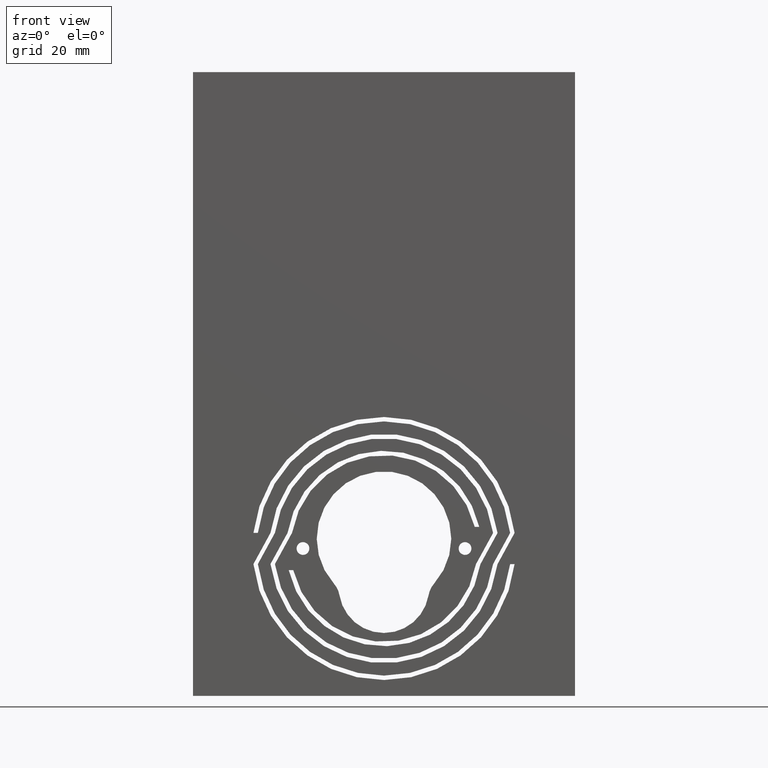
[diagram: clean part render]
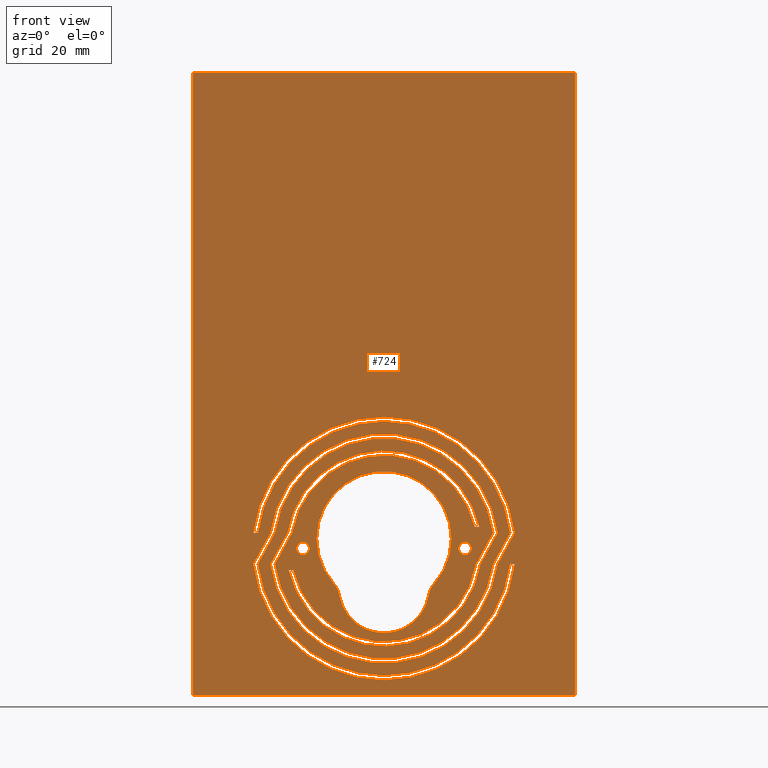
[diagram: same view with one face highlighted and labeled with its STEP entity id]
A machine part, front view. The second image highlights one B-rep face of the part: STEP entity #724.
In plain terms, the highlighted planar face has unit normal (0, 1, 0).
Its self-contained STEP definition (entity closure, byte-faithful):
#24=FACE_BOUND('',#124,.T.);
#25=FACE_BOUND('',#125,.T.);
#26=FACE_BOUND('',#126,.T.);
#27=FACE_BOUND('',#127,.T.);
#28=FACE_BOUND('',#128,.T.);
#46=PLANE('',#811);
#82=FACE_OUTER_BOUND('',#123,.T.);
#123=EDGE_LOOP('',(#637,#638,#639,#640));
#124=EDGE_LOOP('',(#641));
#125=EDGE_LOOP('',(#642));
#126=EDGE_LOOP('',(#643,#644,#645,#646));
#127=EDGE_LOOP('',(#647,#648,#649,#650,#651,#652,#653,#654,#655,#656,#657,
#658));
#128=EDGE_LOOP('',(#659,#660,#661,#662,#663,#664,#665,#666,#667,#668,#669,
#670));
#137=LINE('',#1078,#203);
#141=LINE('',#1090,#207);
#145=LINE('',#1102,#211);
#149=LINE('',#1114,#215);
#153=LINE('',#1126,#219);
#157=LINE('',#1137,#223);
#159=LINE('',#1142,#225);
#164=LINE('',#1156,#230);
#168=LINE('',#1168,#234);
#172=LINE('',#1180,#238);
#176=LINE('',#1192,#242);
#180=LINE('',#1204,#246);
#185=LINE('',#1218,#251);
#188=LINE('',#1224,#254);
#191=LINE('',#1230,#257);
#194=LINE('',#1234,#260);
#203=VECTOR('',#869,10.);
#207=VECTOR('',#881,10.);
#211=VECTOR('',#893,10.);
#215=VECTOR('',#905,10.);
#219=VECTOR('',#917,10.);
#223=VECTOR('',#929,10.);
#225=VECTOR('',#933,10.);
#230=VECTOR('',#946,10.);
#234=VECTOR('',#958,10.);
#238=VECTOR('',#970,10.);
#242=VECTOR('',#982,10.);
#246=VECTOR('',#994,10.);
#251=VECTOR('',#1007,10.);
#254=VECTOR('',#1012,10.);
#257=VECTOR('',#1017,10.);
#260=VECTOR('',#1022,10.);
#262=CIRCLE('',#742,1.3);
#264=CIRCLE('',#745,1.3);
#265=CIRCLE('',#747,4.8);
#267=CIRCLE('',#750,13.7);
#269=CIRCLE('',#753,4.8);
#271=CIRCLE('',#756,9.20000000000001);
#273=CIRCLE('',#759,19.9);
#275=CIRCLE('',#763,19.);
#277=CIRCLE('',#767,22.44);
#279=CIRCLE('',#771,25.88);
#281=CIRCLE('',#775,26.78);
#283=CIRCLE('',#779,23.34);
#285=CIRCLE('',#784,25.88);
#287=CIRCLE('',#788,26.78);
#289=CIRCLE('',#792,23.34);
#291=CIRCLE('',#796,19.9);
#293=CIRCLE('',#800,19.);
#295=CIRCLE('',#804,22.44);
#298=VERTEX_POINT('',#1034);
#300=VERTEX_POINT('',#1040);
#301=VERTEX_POINT('',#1044);
#302=VERTEX_POINT('',#1045);
#305=VERTEX_POINT('',#1053);
#307=VERTEX_POINT('',#1059);
#309=VERTEX_POINT('',#1068);
#310=VERTEX_POINT('',#1069);
#313=VERTEX_POINT('',#1077);
#315=VERTEX_POINT('',#1083);
#317=VERTEX_POINT('',#1089);
#319=VERTEX_POINT('',#1095);
#321=VERTEX_POINT('',#1101);
#323=VERTEX_POINT('',#1107);
#325=VERTEX_POINT('',#1113);
#327=VERTEX_POINT('',#1119);
#329=VERTEX_POINT('',#1125);
#331=VERTEX_POINT('',#1131);
#333=VERTEX_POINT('',#1140);
#334=VERTEX_POINT('',#1141);
#337=VERTEX_POINT('',#1149);
#339=VERTEX_POINT('',#1155);
#341=VERTEX_POINT('',#1161);
#343=VERTEX_POINT('',#1167);
#345=VERTEX_POINT('',#1173);
#347=VERTEX_POINT('',#1179);
#349=VERTEX_POINT('',#1185);
#351=VERTEX_POINT('',#1191);
#353=VERTEX_POINT('',#1197);
#355=VERTEX_POINT('',#1203);
#359=VERTEX_POINT('',#1215);
#360=VERTEX_POINT('',#1217);
#362=VERTEX_POINT('',#1223);
#364=VERTEX_POINT('',#1229);
#367=EDGE_CURVE('',#298,#298,#262,.T.);
#370=EDGE_CURVE('',#300,#300,#264,.T.);
#371=EDGE_CURVE('',#301,#302,#265,.T.);
#375=EDGE_CURVE('',#302,#305,#267,.T.);
#378=EDGE_CURVE('',#305,#307,#269,.T.);
#381=EDGE_CURVE('',#307,#301,#271,.T.);
#383=EDGE_CURVE('',#309,#310,#273,.T.);
#387=EDGE_CURVE('',#310,#313,#137,.T.);
#390=EDGE_CURVE('',#313,#315,#275,.T.);
#393=EDGE_CURVE('',#315,#317,#141,.T.);
#396=EDGE_CURVE('',#317,#319,#277,.T.);
#399=EDGE_CURVE('',#319,#321,#145,.T.);
#402=EDGE_CURVE('',#321,#323,#279,.T.);
#405=EDGE_CURVE('',#323,#325,#149,.T.);
#408=EDGE_CURVE('',#325,#327,#281,.T.);
#411=EDGE_CURVE('',#327,#329,#153,.T.);
#414=EDGE_CURVE('',#329,#331,#283,.T.);
#417=EDGE_CURVE('',#331,#309,#157,.T.);
#419=EDGE_CURVE('',#333,#334,#159,.T.);
#423=EDGE_CURVE('',#334,#337,#285,.T.);
#426=EDGE_CURVE('',#337,#339,#164,.T.);
#429=EDGE_CURVE('',#339,#341,#287,.T.);
#432=EDGE_CURVE('',#341,#343,#168,.T.);
#435=EDGE_CURVE('',#343,#345,#289,.T.);
#438=EDGE_CURVE('',#345,#347,#172,.T.);
#441=EDGE_CURVE('',#347,#349,#291,.T.);
#444=EDGE_CURVE('',#349,#351,#176,.T.);
#447=EDGE_CURVE('',#351,#353,#293,.T.);
#450=EDGE_CURVE('',#353,#355,#180,.T.);
#453=EDGE_CURVE('',#355,#333,#295,.T.);
#457=EDGE_CURVE('',#360,#359,#185,.T.);
#460=EDGE_CURVE('',#362,#360,#188,.T.);
#463=EDGE_CURVE('',#364,#362,#191,.T.);
#466=EDGE_CURVE('',#359,#364,#194,.T.);
#637=ORIENTED_EDGE('',*,*,#466,.T.);
#638=ORIENTED_EDGE('',*,*,#463,.T.);
#639=ORIENTED_EDGE('',*,*,#460,.T.);
#640=ORIENTED_EDGE('',*,*,#457,.T.);
#641=ORIENTED_EDGE('',*,*,#367,.T.);
#642=ORIENTED_EDGE('',*,*,#370,.T.);
#643=ORIENTED_EDGE('',*,*,#371,.T.);
#644=ORIENTED_EDGE('',*,*,#375,.T.);
#645=ORIENTED_EDGE('',*,*,#378,.T.);
#646=ORIENTED_EDGE('',*,*,#381,.T.);
#647=ORIENTED_EDGE('',*,*,#383,.T.);
#648=ORIENTED_EDGE('',*,*,#387,.T.);
#649=ORIENTED_EDGE('',*,*,#390,.T.);
#650=ORIENTED_EDGE('',*,*,#393,.T.);
#651=ORIENTED_EDGE('',*,*,#396,.T.);
#652=ORIENTED_EDGE('',*,*,#399,.T.);
#653=ORIENTED_EDGE('',*,*,#402,.T.);
#654=ORIENTED_EDGE('',*,*,#405,.T.);
#655=ORIENTED_EDGE('',*,*,#408,.T.);
#656=ORIENTED_EDGE('',*,*,#411,.T.);
#657=ORIENTED_EDGE('',*,*,#414,.T.);
#658=ORIENTED_EDGE('',*,*,#417,.T.);
#659=ORIENTED_EDGE('',*,*,#419,.T.);
#660=ORIENTED_EDGE('',*,*,#423,.T.);
#661=ORIENTED_EDGE('',*,*,#426,.T.);
#662=ORIENTED_EDGE('',*,*,#429,.T.);
#663=ORIENTED_EDGE('',*,*,#432,.T.);
#664=ORIENTED_EDGE('',*,*,#435,.T.);
#665=ORIENTED_EDGE('',*,*,#438,.T.);
#666=ORIENTED_EDGE('',*,*,#441,.T.);
#667=ORIENTED_EDGE('',*,*,#444,.T.);
#668=ORIENTED_EDGE('',*,*,#447,.T.);
#669=ORIENTED_EDGE('',*,*,#450,.T.);
#670=ORIENTED_EDGE('',*,*,#453,.T.);
#724=ADVANCED_FACE('',(#82,#24,#25,#26,#27,#28),#46,.F.);
#742=AXIS2_PLACEMENT_3D('',#1036,#822,#823);
#745=AXIS2_PLACEMENT_3D('',#1042,#829,#830);
#747=AXIS2_PLACEMENT_3D('',#1046,#833,#834);
#750=AXIS2_PLACEMENT_3D('',#1054,#841,#842);
#753=AXIS2_PLACEMENT_3D('',#1060,#848,#849);
#756=AXIS2_PLACEMENT_3D('',#1065,#855,#856);
#759=AXIS2_PLACEMENT_3D('',#1070,#861,#862);
#763=AXIS2_PLACEMENT_3D('',#1084,#874,#875);
#767=AXIS2_PLACEMENT_3D('',#1096,#886,#887);
#771=AXIS2_PLACEMENT_3D('',#1108,#898,#899);
#775=AXIS2_PLACEMENT_3D('',#1120,#910,#911);
#779=AXIS2_PLACEMENT_3D('',#1132,#922,#923);
#784=AXIS2_PLACEMENT_3D('',#1150,#939,#940);
#788=AXIS2_PLACEMENT_3D('',#1162,#951,#952);
#792=AXIS2_PLACEMENT_3D('',#1174,#963,#964);
#796=AXIS2_PLACEMENT_3D('',#1186,#975,#976);
#800=AXIS2_PLACEMENT_3D('',#1198,#987,#988);
#804=AXIS2_PLACEMENT_3D('',#1209,#999,#1000);
#811=AXIS2_PLACEMENT_3D('',#1236,#1025,#1026);
#822=DIRECTION('center_axis',(0.,1.,0.));
#823=DIRECTION('ref_axis',(0.,0.,1.));
#829=DIRECTION('center_axis',(0.,1.,0.));
#830=DIRECTION('ref_axis',(0.,0.,1.));
#833=DIRECTION('center_axis',(0.,-1.,0.));
#834=DIRECTION('ref_axis',(0.746361701118838,0.,0.66554054054054));
#841=DIRECTION('center_axis',(0.,1.,0.));
#842=DIRECTION('ref_axis',(-0.746361701118838,0.,-0.66554054054054));
#848=DIRECTION('center_axis',(0.,-1.,0.));
#849=DIRECTION('ref_axis',(-0.986263676478464,0.,0.165178571428571));
#855=DIRECTION('center_axis',(0.,1.,0.));
#856=DIRECTION('ref_axis',(0.986263676478464,0.,-0.165178571428571));
#861=DIRECTION('center_axis',(0.,1.,0.));
#862=DIRECTION('ref_axis',(1.,0.,0.));
#869=DIRECTION('',(-1.,0.,0.));
#874=DIRECTION('center_axis',(0.,-1.,0.));
#875=DIRECTION('ref_axis',(1.,0.,0.));
#881=DIRECTION('',(-0.480742519782678,0.,-0.876861807625923));
#886=DIRECTION('center_axis',(0.,-1.,0.));
#887=DIRECTION('ref_axis',(1.,0.,0.));
#893=DIRECTION('',(0.47955666712719,0.,0.877510913330348));
#898=DIRECTION('center_axis',(0.,-1.,0.));
#899=DIRECTION('ref_axis',(1.,0.,0.));
#905=DIRECTION('',(-1.,0.,-8.35032850502955E-17));
#910=DIRECTION('center_axis',(0.,1.,0.));
#911=DIRECTION('ref_axis',(1.,0.,0.));
#917=DIRECTION('',(-0.47932562607324,0.,-0.877637136970341));
#922=DIRECTION('center_axis',(0.,1.,0.));
#923=DIRECTION('ref_axis',(1.,0.,0.));
#929=DIRECTION('',(0.480375580641031,0.,0.877062883448953));
#933=DIRECTION('',(-0.479556667127191,0.,-0.877510913330347));
#939=DIRECTION('center_axis',(0.,-1.,0.));
#940=DIRECTION('ref_axis',(1.,0.,0.));
#946=DIRECTION('',(1.,0.,0.));
#951=DIRECTION('center_axis',(0.,1.,0.));
#952=DIRECTION('ref_axis',(1.,0.,0.));
#958=DIRECTION('',(0.47932562607324,0.,0.877637136970341));
#963=DIRECTION('center_axis',(0.,1.,0.));
#964=DIRECTION('ref_axis',(1.,0.,0.));
#970=DIRECTION('',(-0.48037558064103,0.,-0.877062883448954));
#975=DIRECTION('center_axis',(0.,1.,0.));
#976=DIRECTION('ref_axis',(1.,0.,0.));
#982=DIRECTION('',(1.,0.,0.));
#987=DIRECTION('center_axis',(0.,-1.,0.));
#988=DIRECTION('ref_axis',(1.,0.,0.));
#994=DIRECTION('',(0.480742519782678,0.,0.876861807625923));
#999=DIRECTION('center_axis',(0.,-1.,0.));
#1000=DIRECTION('ref_axis',(1.,0.,0.));
#1007=DIRECTION('',(3.49676543189026E-17,0.,1.));
#1012=DIRECTION('',(1.,0.,0.));
#1017=DIRECTION('',(0.,0.,-1.));
#1022=DIRECTION('',(-1.,0.,0.));
#1025=DIRECTION('center_axis',(0.,1.,0.));
#1026=DIRECTION('ref_axis',(1.,0.,0.));
#1034=CARTESIAN_POINT('',(16.5,-2.54,-3.29999999999999));
#1036=CARTESIAN_POINT('Origin',(16.5,-2.54,-1.99999999999999));
#1040=CARTESIAN_POINT('',(-16.5,-2.54,-3.30000000000001));
#1042=CARTESIAN_POINT('Origin',(-16.5,-2.54,-2.00000000000001));
#1044=CARTESIAN_POINT('',(-9.07362582360187,-2.54,-11.5196428571429));
#1045=CARTESIAN_POINT('',(-10.2251553053281,-2.54,-9.1179054054054));
#1046=CARTESIAN_POINT('Origin',(-13.8076914706985,-2.54,-12.3125));
#1053=CARTESIAN_POINT('',(10.2251553053281,-2.54,-9.1179054054054));
#1054=CARTESIAN_POINT('Origin',(4.44089209850063E-15,-2.54,2.77555756156289E-16));
#1059=CARTESIAN_POINT('',(9.07362582360188,-2.54,-11.5196428571428));
#1060=CARTESIAN_POINT('Origin',(13.8076914706985,-2.54,-12.3125));
#1065=CARTESIAN_POINT('Origin',(0.,-2.54,-9.99999999999999));
#1068=CARTESIAN_POINT('',(-19.6450852632408,-2.54,1.175));
#1069=CARTESIAN_POINT('',(19.4065889547107,-2.54,2.40389658630871));
#1070=CARTESIAN_POINT('Origin',(2.80030629290744E-16,-2.54,-2.));
#1077=CARTESIAN_POINT('',(18.4825781442173,-2.54,2.40389658630871));
#1078=CARTESIAN_POINT('',(9.24128907210864,-2.54,2.40389658630871));
#1083=CARTESIAN_POINT('',(-18.7328421495511,-2.54,1.175));
#1084=CARTESIAN_POINT('Origin',(2.80030629290744E-16,-2.54,-2.));
#1089=CARTESIAN_POINT('',(-22.2142516191746,-2.54,-5.17500000000001));
#1090=CARTESIAN_POINT('',(-11.9171693957093,-2.54,13.6066091986666));
#1095=CARTESIAN_POINT('',(22.2142516191746,-2.54,-5.175));
#1096=CARTESIAN_POINT('Origin',(2.80030629290744E-16,-2.54,-2.));
#1101=CARTESIAN_POINT('',(25.6845045698764,-2.54,1.175));
#1102=CARTESIAN_POINT('',(29.1117385446767,-2.54,7.44628225208508));
#1107=CARTESIAN_POINT('',(-25.6845045698764,-2.54,1.175));
#1108=CARTESIAN_POINT('Origin',(2.80030629290744E-16,-2.54,-2.));
#1113=CARTESIAN_POINT('',(-26.5911221087039,-2.54,1.175));
#1114=CARTESIAN_POINT('',(-13.2955610543519,-2.54,1.175));
#1119=CARTESIAN_POINT('',(26.5911221087039,-2.54,1.175));
#1120=CARTESIAN_POINT('Origin',(2.80030629290744E-16,-2.54,-2.));
#1125=CARTESIAN_POINT('',(23.1230399169313,-2.54,-5.175));
#1126=CARTESIAN_POINT('',(28.180854304165,-2.54,4.08577283725459));
#1131=CARTESIAN_POINT('',(-23.1230399169313,-2.54,-5.175));
#1132=CARTESIAN_POINT('Origin',(2.80030629290744E-16,-2.54,-2.));
#1137=CARTESIAN_POINT('',(-10.9901701526404,-2.54,16.9770205622848));
#1140=CARTESIAN_POINT('',(-22.2142516191746,-2.54,1.17499999999999));
#1141=CARTESIAN_POINT('',(-25.6845045698764,-2.54,-5.175));
#1142=CARTESIAN_POINT('',(-15.014395544368,-2.54,14.3495687488792));
#1149=CARTESIAN_POINT('',(25.6845045698764,-2.54,-5.175));
#1150=CARTESIAN_POINT('Origin',(2.80030629290744E-16,-2.54,-2.));
#1155=CARTESIAN_POINT('',(26.5911221087039,-2.54,-5.175));
#1156=CARTESIAN_POINT('',(13.2955610543519,-2.54,-5.175));
#1161=CARTESIAN_POINT('',(-26.5911221087039,-2.54,-5.175));
#1162=CARTESIAN_POINT('Origin',(2.80030629290744E-16,-2.54,-2.));
#1167=CARTESIAN_POINT('',(-23.1230399169313,-2.54,1.175));
#1168=CARTESIAN_POINT('',(-14.0882763043599,-2.54,17.7174997930935));
#1173=CARTESIAN_POINT('',(23.1230399169313,-2.54,1.175));
#1174=CARTESIAN_POINT('Origin',(2.80030629290744E-16,-2.54,-2.));
#1179=CARTESIAN_POINT('',(19.6450852632408,-2.54,-5.175));
#1180=CARTESIAN_POINT('',(25.1043764811392,-2.54,4.79249603876221));
#1185=CARTESIAN_POINT('',(-19.4065889547107,-2.54,-6.40389658630871));
#1186=CARTESIAN_POINT('Origin',(2.80030629290744E-16,-2.54,-2.));
#1191=CARTESIAN_POINT('',(-18.4825781442173,-2.54,-6.40389658630871));
#1192=CARTESIAN_POINT('',(-9.24128907210865,-2.54,-6.40389658630871));
#1197=CARTESIAN_POINT('',(18.7328421495511,-2.54,-5.175));
#1198=CARTESIAN_POINT('Origin',(2.80030629290744E-16,-2.54,-2.));
#1203=CARTESIAN_POINT('',(22.2142516191746,-2.54,1.175));
#1204=CARTESIAN_POINT('',(26.0389186848352,-2.54,8.15109289537893));
#1209=CARTESIAN_POINT('Origin',(2.80030629290744E-16,-2.54,-2.));
#1215=CARTESIAN_POINT('',(38.8874,-2.54,95.));
#1217=CARTESIAN_POINT('',(38.8874,-2.54,-32.));
#1218=CARTESIAN_POINT('',(38.8874,-2.54,-32.));
#1223=CARTESIAN_POINT('',(-38.8874,-2.54,-32.));
#1224=CARTESIAN_POINT('',(-38.8874,-2.54,-32.));
#1229=CARTESIAN_POINT('',(-38.8874,-2.54,95.));
#1230=CARTESIAN_POINT('',(-38.8874,-2.54,95.));
#1234=CARTESIAN_POINT('',(38.8874,-2.54,95.));
#1236=CARTESIAN_POINT('Origin',(-1.33226762955019E-14,-2.54,31.5));